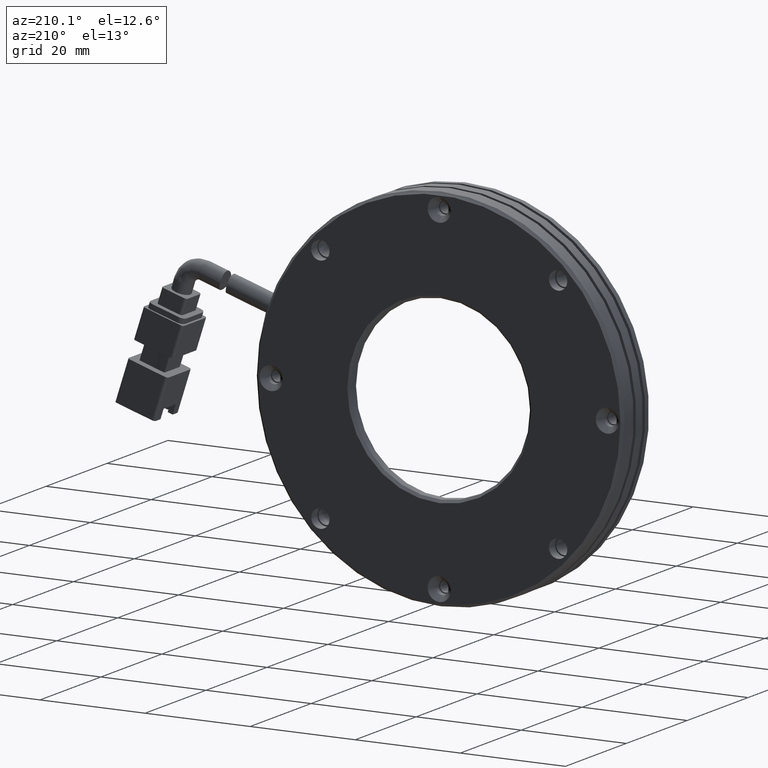
[diagram: clean part render]
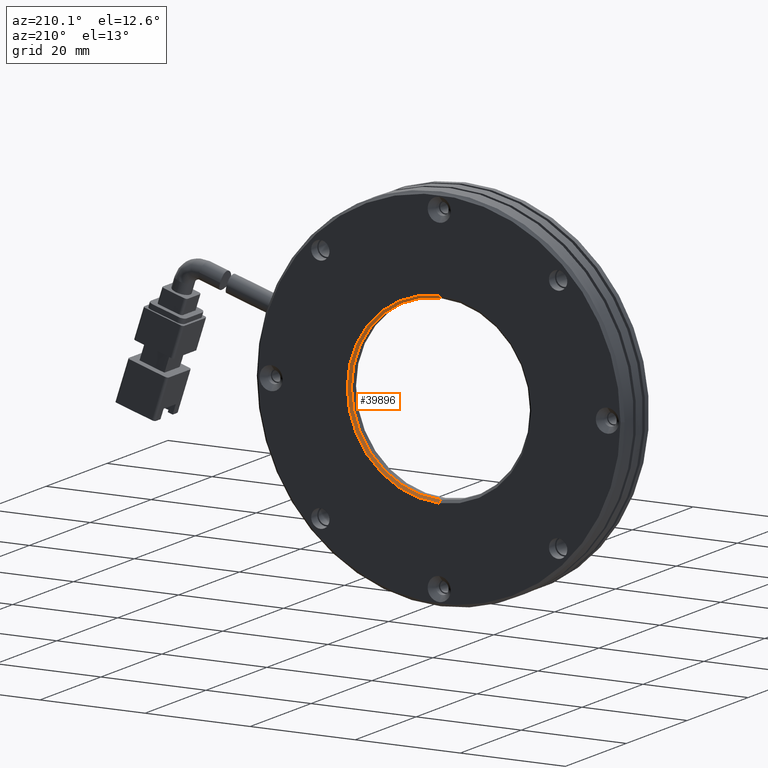
[diagram: same view with one face highlighted and labeled with its STEP entity id]
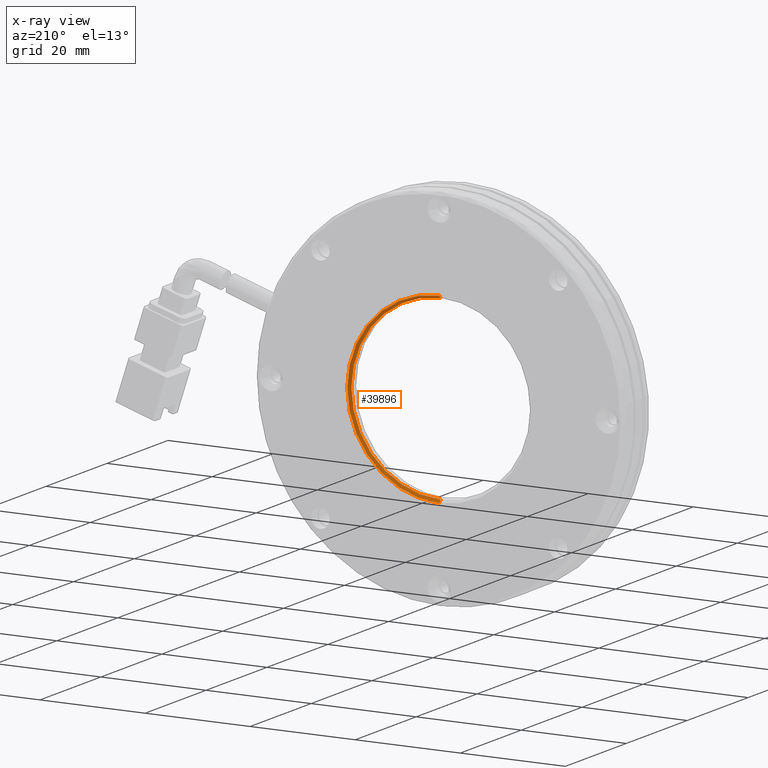
[diagram: x-ray of the same camera — body ghosted, the highlighted face saturated]
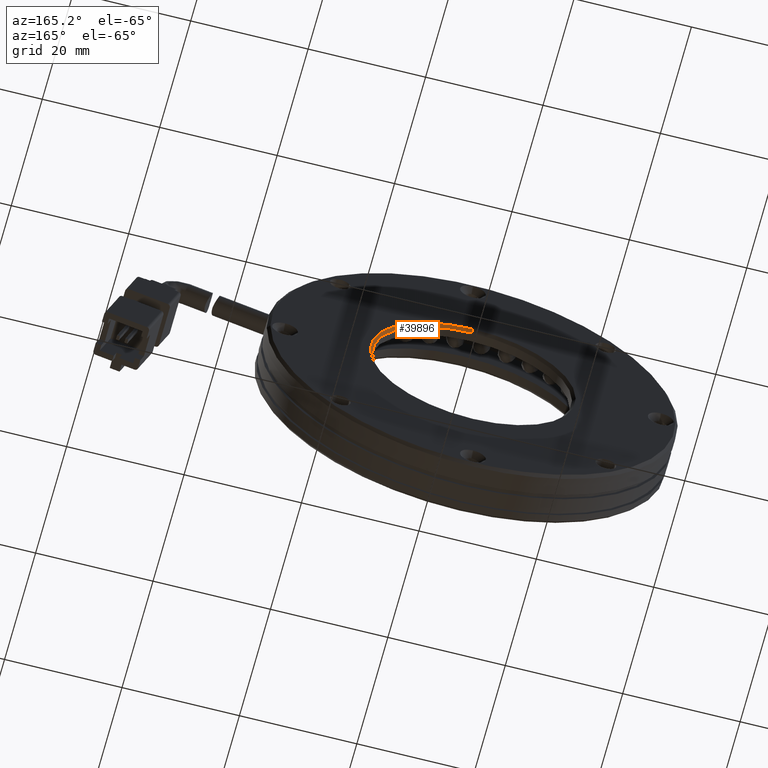
[diagram: same view with one face highlighted and labeled with its STEP entity id]
A machine part, auxiliary view. The second image highlights one B-rep face of the part: STEP entity #39896.
The next image is the same camera in x-ray: the body ghosted, the highlighted face saturated — about 0% of this face is hidden behind the body in this view.
A second angle (auxiliary view) of the same face is appended — the face is thin or edge-on in the first view.
In plain terms, the highlighted conical surface has half-angle 45 deg.
Its self-contained STEP definition (entity closure, byte-faithful):
#1546 = EDGE_CURVE ( 'NONE', #36107, #16522, #39443, .T. ) ;
#1769 = CIRCLE ( 'NONE', #23377, 17.50000000000000700 ) ;
#2228 = DIRECTION ( 'NONE',  ( 0.0000000000000000000, 0.0000000000000000000, 1.000000000000000000 ) ) ;
#2586 = ORIENTED_EDGE ( 'NONE', *, *, #1546, .F. ) ;
#4262 = DIRECTION ( 'NONE',  ( -0.0000000000000000000, 1.000000000000000000, 0.0000000000000000000 ) ) ;
#5524 = LINE ( 'NONE', #5852, #21985 ) ;
#5852 = CARTESIAN_POINT ( 'NONE',  ( -5.709292144904342300, 13.26020291540425200, 17.49999999999998900 ) ) ;
#6530 = CARTESIAN_POINT ( 'NONE',  ( -5.709292144904342300, 12.76020291540426400, -2.081668171172168500E-014 ) ) ;
#8954 = DIRECTION ( 'NONE',  ( 0.0000000000000000000, 0.7071067811865425800, 0.7071067811865525700 ) ) ;
#9175 = EDGE_CURVE ( 'NONE', #37580, #31588, #5524, .T. ) ;
#9206 = CARTESIAN_POINT ( 'NONE',  ( -5.709292144904340600, 12.76020291540426400, 16.99999999999998600 ) ) ;
#9616 = DIRECTION ( 'NONE',  ( 0.0000000000000000000, 0.0000000000000000000, 1.000000000000000000 ) ) ;
#9975 = AXIS2_PLACEMENT_3D ( 'NONE', #13432, #4262, #10552 ) ;
#10552 = DIRECTION ( 'NONE',  ( 0.0000000000000000000, 0.0000000000000000000, 1.000000000000000000 ) ) ;
#13432 = CARTESIAN_POINT ( 'NONE',  ( -5.709292144904342300, 13.26020291540425200, -2.081668171172168500E-014 ) ) ;
#15330 = CONICAL_SURFACE ( 'NONE', #9975, 17.50000000000000700, 0.7853981633974552700 ) ;
#16522 = VERTEX_POINT ( 'NONE', #38753 ) ;
#19213 = FACE_OUTER_BOUND ( 'NONE', #28880, .T. ) ;
#20722 = DIRECTION ( 'NONE',  ( -0.0000000000000000000, 1.000000000000000000, 0.0000000000000000000 ) ) ;
#21985 = VECTOR ( 'NONE', #8954, 999.9999999999998900 ) ;
#22097 = CIRCLE ( 'NONE', #22230, 17.00000000000000700 ) ;
#22230 = AXIS2_PLACEMENT_3D ( 'NONE', #6530, #28221, #9616 ) ;
#22824 = VECTOR ( 'NONE', #30865, 999.9999999999998900 ) ;
#23377 = AXIS2_PLACEMENT_3D ( 'NONE', #39440, #20722, #2228 ) ;
#23864 = ORIENTED_EDGE ( 'NONE', *, *, #29824, .F. ) ;
#24587 = EDGE_CURVE ( 'NONE', #31588, #16522, #1769, .T. ) ;
#27773 = ORIENTED_EDGE ( 'NONE', *, *, #9175, .T. ) ;
#28221 = DIRECTION ( 'NONE',  ( -0.0000000000000000000, 1.000000000000000000, -0.0000000000000000000 ) ) ;
#28880 = EDGE_LOOP ( 'NONE', ( #2586, #23864, #27773, #37708 ) ) ;
#29824 = EDGE_CURVE ( 'NONE', #37580, #36107, #22097, .T. ) ;
#30865 = DIRECTION ( 'NONE',  ( 8.659560562354994500E-017, 0.7071067811865425800, -0.7071067811865525700 ) ) ;
#31588 = VERTEX_POINT ( 'NONE', #33728 ) ;
#33728 = CARTESIAN_POINT ( 'NONE',  ( -5.709292144904342300, 13.26020291540425200, 17.49999999999998900 ) ) ;
#34225 = CARTESIAN_POINT ( 'NONE',  ( -5.709292144904340600, 13.26020291540425200, -17.50000000000002800 ) ) ;
#35445 = CARTESIAN_POINT ( 'NONE',  ( -5.709292144904342300, 12.76020291540426400, -17.00000000000002800 ) ) ;
#36107 = VERTEX_POINT ( 'NONE', #35445 ) ;
#37580 = VERTEX_POINT ( 'NONE', #9206 ) ;
#37708 = ORIENTED_EDGE ( 'NONE', *, *, #24587, .T. ) ;
#38753 = CARTESIAN_POINT ( 'NONE',  ( -5.709292144904340600, 13.26020291540425200, -17.50000000000002800 ) ) ;
#39440 = CARTESIAN_POINT ( 'NONE',  ( -5.709292144904342300, 13.26020291540425200, -2.081668171172168500E-014 ) ) ;
#39443 = LINE ( 'NONE', #34225, #22824 ) ;
#39896 = ADVANCED_FACE ( 'NONE', ( #19213 ), #15330, .F. ) ;